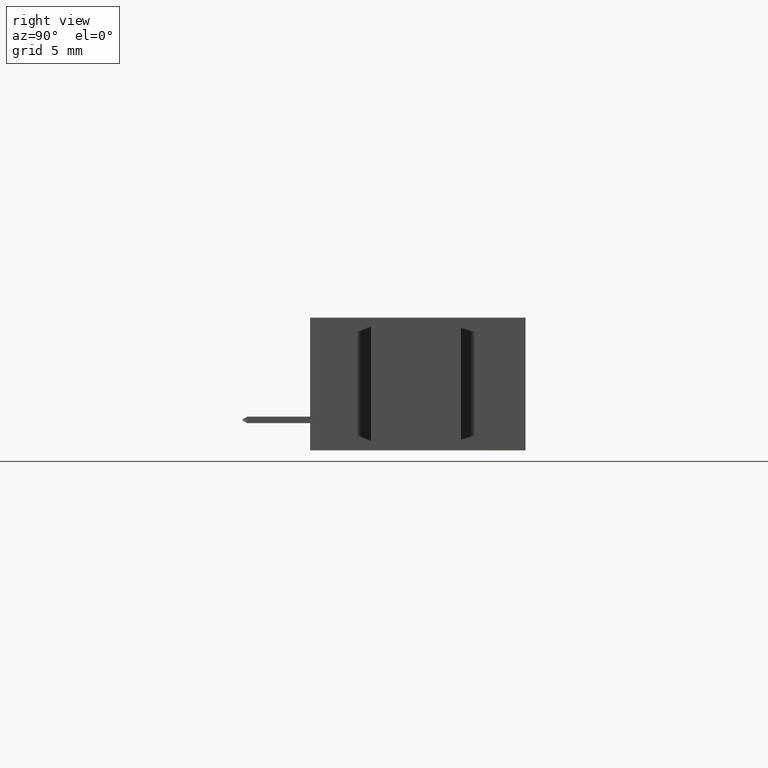
[diagram: clean part render]
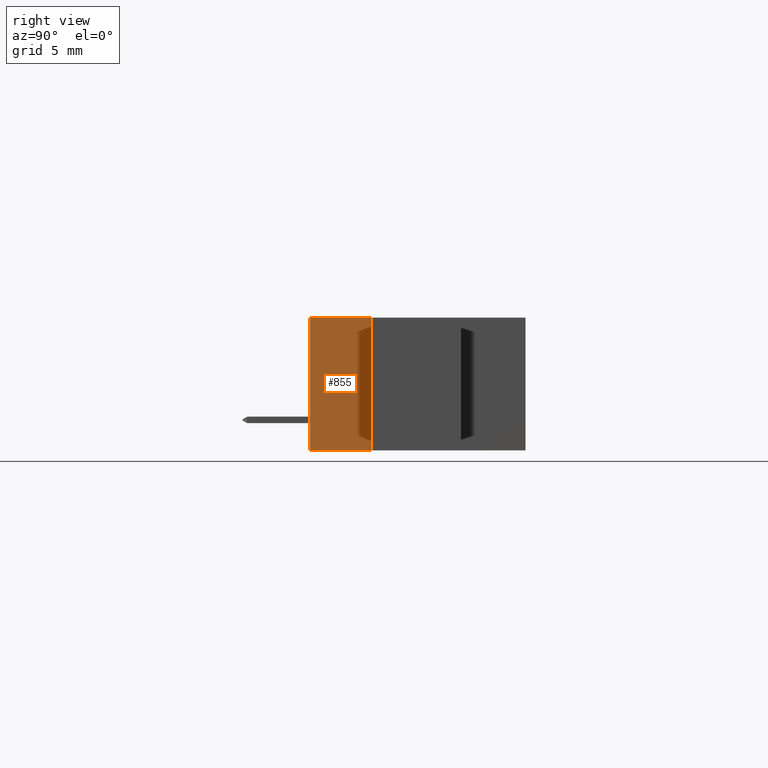
[diagram: same view with one face highlighted and labeled with its STEP entity id]
A machine part, right view. The second image highlights one B-rep face of the part: STEP entity #855.
In plain terms, the highlighted planar face has unit normal (-1, 0, 0).
Its self-contained STEP definition (entity closure, byte-faithful):
#37 = FACE_OUTER_BOUND ( 'NONE', #10072, .T. ) ;
#855 = ADVANCED_FACE ( 'NONE', ( #37 ), #4000, .F. ) ;
#874 = EDGE_CURVE ( 'NONE', #3151, #4736, #5408, .T. ) ;
#1181 = DIRECTION ( 'NONE',  ( 0.0000000000000000000, 0.0000000000000000000, -1.000000000000000000 ) ) ;
#1870 = CARTESIAN_POINT ( 'NONE',  ( 1.487000000000000800, 0.1699999999999999800, -0.3699999999999998800 ) ) ;
#2729 = VERTEX_POINT ( 'NONE', #8773 ) ;
#2903 = LINE ( 'NONE', #9611, #10431 ) ;
#3031 = VERTEX_POINT ( 'NONE', #3677 ) ;
#3151 = VERTEX_POINT ( 'NONE', #10128 ) ;
#3677 = CARTESIAN_POINT ( 'NONE',  ( 1.487000000000000800, 0.0000000000000000000, -0.3699999999999998800 ) ) ;
#3844 = DIRECTION ( 'NONE',  ( 0.0000000000000000000, 0.0000000000000000000, -1.000000000000000000 ) ) ;
#3891 = VECTOR ( 'NONE', #9838, 39.37007874015748100 ) ;
#4000 = PLANE ( 'NONE',  #7906 ) ;
#4111 = EDGE_CURVE ( 'NONE', #3151, #2729, #2903, .T. ) ;
#4337 = EDGE_CURVE ( 'NONE', #4736, #3031, #8476, .T. ) ;
#4548 = CARTESIAN_POINT ( 'NONE',  ( 1.487000000000000800, 0.0000000000000000000, 1.386300176634805000E-016 ) ) ;
#4736 = VERTEX_POINT ( 'NONE', #6547 ) ;
#4806 = DIRECTION ( 'NONE',  ( 0.0000000000000000000, 0.0000000000000000000, 1.000000000000000000 ) ) ;
#4955 = ORIENTED_EDGE ( 'NONE', *, *, #874, .T. ) ;
#5408 = LINE ( 'NONE', #5623, #3891 ) ;
#5455 = VECTOR ( 'NONE', #1181, 39.37007874015748100 ) ;
#5460 = ORIENTED_EDGE ( 'NONE', *, *, #4111, .F. ) ;
#5623 = CARTESIAN_POINT ( 'NONE',  ( 1.487000000000000800, 0.1699999999999999800, 1.386300176634805000E-016 ) ) ;
#5965 = ORIENTED_EDGE ( 'NONE', *, *, #9381, .F. ) ;
#6193 = VECTOR ( 'NONE', #6771, 39.37007874015748100 ) ;
#6547 = CARTESIAN_POINT ( 'NONE',  ( 1.487000000000000800, 0.0000000000000000000, 0.0000000000000000000 ) ) ;
#6771 = DIRECTION ( 'NONE',  ( -0.0000000000000000000, -1.000000000000000000, -0.0000000000000000000 ) ) ;
#7248 = CARTESIAN_POINT ( 'NONE',  ( 1.487000000000000800, 0.1699999999999999800, 1.386300176634805000E-016 ) ) ;
#7906 = AXIS2_PLACEMENT_3D ( 'NONE', #7248, #8932, #4806 ) ;
#8219 = LINE ( 'NONE', #1870, #6193 ) ;
#8476 = LINE ( 'NONE', #4548, #5455 ) ;
#8773 = CARTESIAN_POINT ( 'NONE',  ( 1.487000000000000800, 0.1699999999999999800, -0.3699999999999998800 ) ) ;
#8932 = DIRECTION ( 'NONE',  ( -1.000000000000000000, 0.0000000000000000000, 0.0000000000000000000 ) ) ;
#9381 = EDGE_CURVE ( 'NONE', #2729, #3031, #8219, .T. ) ;
#9611 = CARTESIAN_POINT ( 'NONE',  ( 1.487000000000000800, 0.1699999999999999800, 1.386300176634805000E-016 ) ) ;
#9838 = DIRECTION ( 'NONE',  ( -0.0000000000000000000, -1.000000000000000000, -0.0000000000000000000 ) ) ;
#9966 = ORIENTED_EDGE ( 'NONE', *, *, #4337, .T. ) ;
#10072 = EDGE_LOOP ( 'NONE', ( #9966, #5965, #5460, #4955 ) ) ;
#10128 = CARTESIAN_POINT ( 'NONE',  ( 1.487000000000000800, 0.1699999999999999800, 1.386300176634805000E-016 ) ) ;
#10431 = VECTOR ( 'NONE', #3844, 39.37007874015748100 ) ;